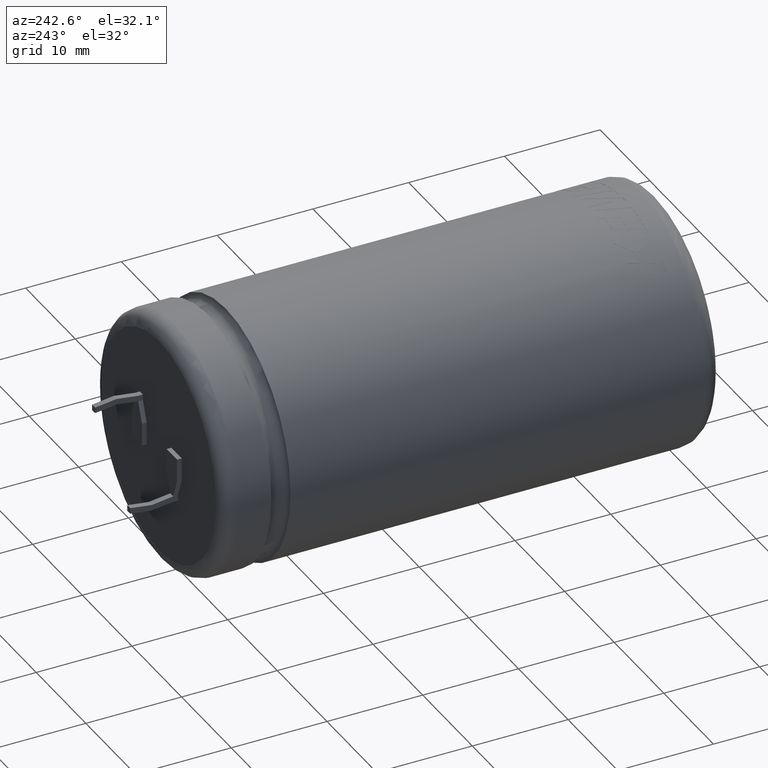
[diagram: clean part render]
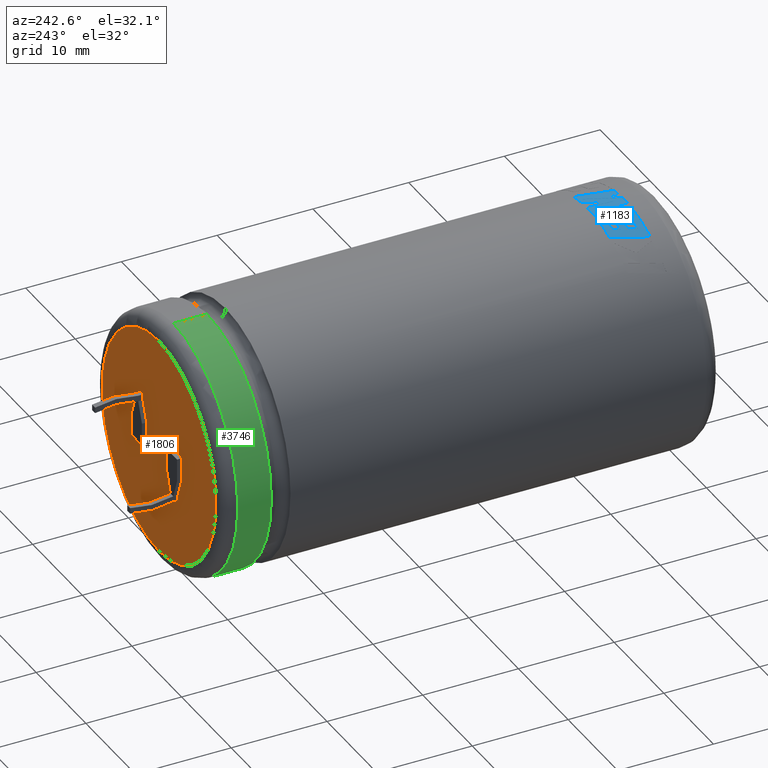
[diagram: same view with three faces highlighted in distinct colors, each labeled with its STEP entity id]
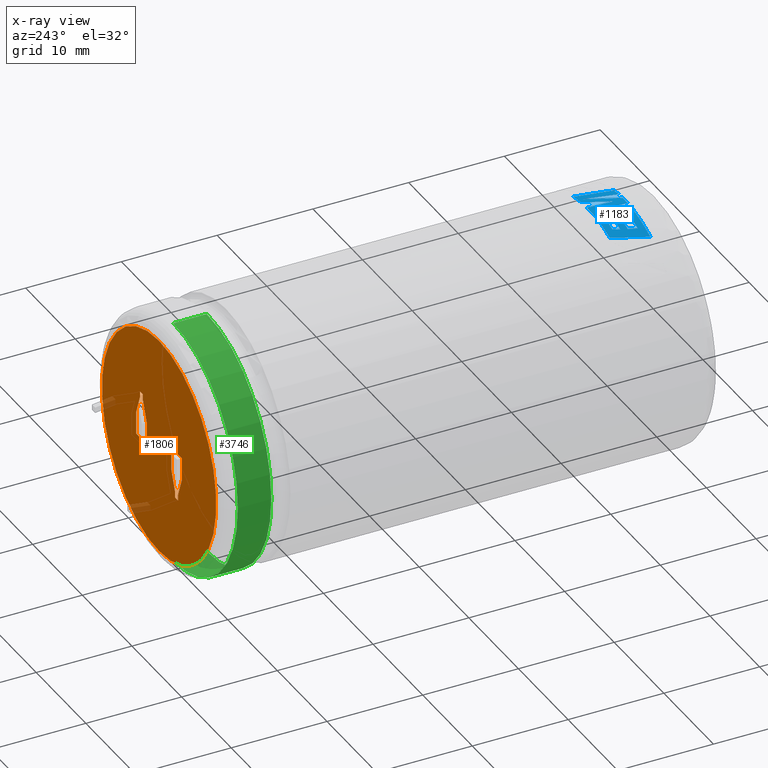
[diagram: x-ray of the same camera — body ghosted, the three highlighted faces saturated]
A machine part, auxiliary view with three faces highlighted in distinct colors.
The next image is the same camera in x-ray (body ghosted, the three faces saturated) — at least one of them is partly hidden behind the body in this view.
Their STEP definitions:

[orange] entity #1806 — the highlighted planar face has unit normal (0, 1, 0).
#51 = DIRECTION ( 'NONE',  ( 0.0000000000000000000, 1.000000000000000000, 0.0000000000000000000 ) ) ;
#64 = LINE ( 'NONE', #3012, #1003 ) ;
#130 = EDGE_LOOP ( 'NONE', ( #3664, #881 ) ) ;
#143 = CARTESIAN_POINT ( 'NONE',  ( -2.485533905932738800, 51.98999999999999500, 1.200000000000004000 ) ) ;
#177 = EDGE_CURVE ( 'NONE', #2941, #4159, #3143, .T. ) ;
#181 = ORIENTED_EDGE ( 'NONE', *, *, #3956, .F. ) ;
#236 = CARTESIAN_POINT ( 'NONE',  ( -2.485533905932738400, 51.98999999999999500, 4.171734828359475000E-015 ) ) ;
#290 = FACE_BOUND ( 'NONE', #2475, .T. ) ;
#345 = CARTESIAN_POINT ( 'NONE',  ( -4.585533905932739400, 51.98999999999999500, -1.199999999999995300 ) ) ;
#371 = CARTESIAN_POINT ( 'NONE',  ( 2.485533905932738800, 51.98999999999999500, -1.200000000000004000 ) ) ;
#446 = VECTOR ( 'NONE', #3753, 1000.000000000000000 ) ;
#447 = CARTESIAN_POINT ( 'NONE',  ( 3.235533905932737500, 51.98999999999999500, 3.235533905932737500 ) ) ;
#502 = ORIENTED_EDGE ( 'NONE', *, *, #886, .F. ) ;
#508 = DIRECTION ( 'NONE',  ( 1.000000000000000000, -0.0000000000000000000, 0.0000000000000000000 ) ) ;
#511 = FACE_OUTER_BOUND ( 'NONE', #130, .T. ) ;
#523 = EDGE_CURVE ( 'NONE', #4637, #2574, #3837, .T. ) ;
#525 = CARTESIAN_POINT ( 'NONE',  ( -3.835533905932737100, 51.98999999999999500, -3.235533905932737500 ) ) ;
#536 = VERTEX_POINT ( 'NONE', #3032 ) ;
#675 = VERTEX_POINT ( 'NONE', #525 ) ;
#708 = VECTOR ( 'NONE', #3262, 1000.000000000000000 ) ;
#724 = ORIENTED_EDGE ( 'NONE', *, *, #3546, .F. ) ;
#775 = VECTOR ( 'NONE', #2172, 1000.000000000000000 ) ;
#794 = DIRECTION ( 'NONE',  ( 0.0000000000000000000, 0.0000000000000000000, 1.000000000000000000 ) ) ;
#841 = CIRCLE ( 'NONE', #2663, 11.50240000000000200 ) ;
#863 = EDGE_CURVE ( 'NONE', #675, #3611, #64, .T. ) ;
#881 = ORIENTED_EDGE ( 'NONE', *, *, #3170, .T. ) ;
#886 = EDGE_CURVE ( 'NONE', #2574, #2941, #2630, .T. ) ;
#900 = VECTOR ( 'NONE', #1640, 1000.000000000000000 ) ;
#952 = ORIENTED_EDGE ( 'NONE', *, *, #1060, .F. ) ;
#1003 = VECTOR ( 'NONE', #1920, 1000.000000000000000 ) ;
#1014 = DIRECTION ( 'NONE',  ( 0.0000000000000000000, -0.0000000000000000000, 1.000000000000000000 ) ) ;
#1023 = CARTESIAN_POINT ( 'NONE',  ( 2.485533905932738800, 51.98999999999999500, -1.200000000000004000 ) ) ;
#1033 = ORIENTED_EDGE ( 'NONE', *, *, #2247, .F. ) ;
#1060 = EDGE_CURVE ( 'NONE', #3026, #2651, #3242, .T. ) ;
#1092 = ORIENTED_EDGE ( 'NONE', *, *, #1956, .F. ) ;
#1117 = CARTESIAN_POINT ( 'NONE',  ( -3.235533905932737500, 51.98999999999999500, -3.235533905932737500 ) ) ;
#1175 = CARTESIAN_POINT ( 'NONE',  ( -3.835533905932737600, 51.98999999999999500, -3.835533905932737600 ) ) ;
#1217 = CARTESIAN_POINT ( 'NONE',  ( 0.0000000000000000000, 51.98999999999999500, 0.0000000000000000000 ) ) ;
#1337 = LINE ( 'NONE', #1175, #446 ) ;
#1372 = DIRECTION ( 'NONE',  ( -1.000000000000000000, 0.0000000000000000000, -3.923779290899926400E-015 ) ) ;
#1381 = DIRECTION ( 'NONE',  ( 1.000000000000000000, -0.0000000000000000000, 3.923779290899926400E-015 ) ) ;
#1391 = ORIENTED_EDGE ( 'NONE', *, *, #863, .F. ) ;
#1401 = CARTESIAN_POINT ( 'NONE',  ( -2.485533905932738800, 51.98999999999999500, 1.200000000000004000 ) ) ;
#1413 = EDGE_CURVE ( 'NONE', #3611, #3426, #2894, .T. ) ;
#1433 = VERTEX_POINT ( 'NONE', #3098 ) ;
#1590 = VECTOR ( 'NONE', #1381, 1000.000000000000000 ) ;
#1598 = DIRECTION ( 'NONE',  ( 0.0000000000000000000, -0.0000000000000000000, 1.000000000000000000 ) ) ;
#1640 = DIRECTION ( 'NONE',  ( -1.000000000000000000, -0.0000000000000000000, -0.0000000000000000000 ) ) ;
#1684 = CARTESIAN_POINT ( 'NONE',  ( 0.0000000000000000000, 51.98999999999999500, 0.0000000000000000000 ) ) ;
#1703 = CARTESIAN_POINT ( 'NONE',  ( 3.235533905932737500, 51.98999999999999500, 3.835533905932737600 ) ) ;
#1709 = VECTOR ( 'NONE', #2584, 1000.000000000000000 ) ;
#1713 = VERTEX_POINT ( 'NONE', #1117 ) ;
#1751 = CARTESIAN_POINT ( 'NONE',  ( -3.235533905932737500, 51.98999999999999500, -3.835533905932737600 ) ) ;
#1796 = CARTESIAN_POINT ( 'NONE',  ( 3.835533905932737600, 51.98999999999999500, 3.835533905932737600 ) ) ;
#1806 = ADVANCED_FACE ( 'NONE', ( #290, #511, #3865 ), #3764, .T. ) ;
#1809 = CARTESIAN_POINT ( 'NONE',  ( -4.585533905932739400, 51.98999999999999500, 1.200000000000004400 ) ) ;
#1831 = VERTEX_POINT ( 'NONE', #2325 ) ;
#1893 = LINE ( 'NONE', #1401, #1590 ) ;
#1920 = DIRECTION ( 'NONE',  ( -0.3457323320025593700, -0.0000000000000000000, 0.9383331788912039300 ) ) ;
#1925 = VECTOR ( 'NONE', #4570, 1000.000000000000000 ) ;
#1949 = ORIENTED_EDGE ( 'NONE', *, *, #4790, .F. ) ;
#1953 = CARTESIAN_POINT ( 'NONE',  ( 3.235533905932737500, 51.98999999999999500, 3.835533905932737600 ) ) ;
#1956 = EDGE_CURVE ( 'NONE', #2360, #3948, #2308, .T. ) ;
#1970 = CARTESIAN_POINT ( 'NONE',  ( -4.585533905932739400, 51.98999999999999500, -1.199999999999995300 ) ) ;
#1986 = VECTOR ( 'NONE', #3050, 1000.000000000000000 ) ;
#2044 = VERTEX_POINT ( 'NONE', #3913 ) ;
#2058 = EDGE_LOOP ( 'NONE', ( #1092, #4207, #1033, #4077, #2860, #502, #3561, #181 ) ) ;
#2081 = VECTOR ( 'NONE', #508, 1000.000000000000000 ) ;
#2124 = CARTESIAN_POINT ( 'NONE',  ( 4.585533905932739400, 51.98999999999999500, 1.199999999999995300 ) ) ;
#2164 = DIRECTION ( 'NONE',  ( -0.3457323320025580400, -0.0000000000000000000, -0.9383331788912043800 ) ) ;
#2172 = DIRECTION ( 'NONE',  ( -7.228014483236692600E-016, 0.0000000000000000000, -1.000000000000000000 ) ) ;
#2231 = VERTEX_POINT ( 'NONE', #3686 ) ;
#2247 = EDGE_CURVE ( 'NONE', #4707, #2044, #3189, .T. ) ;
#2308 = LINE ( 'NONE', #2374, #3918 ) ;
#2325 = CARTESIAN_POINT ( 'NONE',  ( 1.408637734251251500E-015, 51.98999999999999500, -11.50240000000000200 ) ) ;
#2360 = VERTEX_POINT ( 'NONE', #4557 ) ;
#2362 = EDGE_CURVE ( 'NONE', #536, #1831, #2606, .T. ) ;
#2374 = CARTESIAN_POINT ( 'NONE',  ( 4.585533905932739400, 51.98999999999999500, 1.199999999999995300 ) ) ;
#2475 = EDGE_LOOP ( 'NONE', ( #2878, #1391, #2579, #4141, #3906, #1949, #952, #724 ) ) ;
#2574 = VERTEX_POINT ( 'NONE', #4055 ) ;
#2579 = ORIENTED_EDGE ( 'NONE', *, *, #2639, .F. ) ;
#2584 = DIRECTION ( 'NONE',  ( -0.0000000000000000000, -0.0000000000000000000, -1.000000000000000000 ) ) ;
#2592 = LINE ( 'NONE', #1751, #1709 ) ;
#2606 = CIRCLE ( 'NONE', #3947, 11.50240000000000200 ) ;
#2630 = LINE ( 'NONE', #447, #2676 ) ;
#2639 = EDGE_CURVE ( 'NONE', #2231, #675, #1337, .T. ) ;
#2651 = VERTEX_POINT ( 'NONE', #4502 ) ;
#2663 = AXIS2_PLACEMENT_3D ( 'NONE', #1217, #51, #794 ) ;
#2676 = VECTOR ( 'NONE', #3361, 1000.000000000000100 ) ;
#2860 = ORIENTED_EDGE ( 'NONE', *, *, #177, .F. ) ;
#2878 = ORIENTED_EDGE ( 'NONE', *, *, #1413, .F. ) ;
#2894 = LINE ( 'NONE', #1970, #1925 ) ;
#2941 = VERTEX_POINT ( 'NONE', #4379 ) ;
#2964 = VECTOR ( 'NONE', #3884, 1000.000000000000000 ) ;
#2978 = EDGE_CURVE ( 'NONE', #1433, #2231, #3275, .T. ) ;
#3006 = VECTOR ( 'NONE', #1372, 1000.000000000000000 ) ;
#3012 = CARTESIAN_POINT ( 'NONE',  ( -4.585533905932739400, 51.98999999999999500, -1.199999999999995300 ) ) ;
#3026 = VERTEX_POINT ( 'NONE', #143 ) ;
#3032 = CARTESIAN_POINT ( 'NONE',  ( 0.0000000000000000000, 51.98999999999999500, 11.50240000000000200 ) ) ;
#3050 = DIRECTION ( 'NONE',  ( 0.0000000000000000000, 0.0000000000000000000, 1.000000000000000000 ) ) ;
#3089 = DIRECTION ( 'NONE',  ( 0.0000000000000000000, 0.0000000000000000000, -1.000000000000000000 ) ) ;
#3096 = CARTESIAN_POINT ( 'NONE',  ( 2.485533905932738400, 51.98999999999999500, -4.171734828359475000E-015 ) ) ;
#3098 = CARTESIAN_POINT ( 'NONE',  ( -3.235533905932737500, 51.98999999999999500, -3.835533905932737600 ) ) ;
#3104 = LINE ( 'NONE', #3824, #2081 ) ;
#3143 = LINE ( 'NONE', #1703, #4733 ) ;
#3170 = EDGE_CURVE ( 'NONE', #1831, #536, #841, .T. ) ;
#3173 = DIRECTION ( 'NONE',  ( 0.0000000000000000000, 1.000000000000000000, 0.0000000000000000000 ) ) ;
#3189 = LINE ( 'NONE', #1796, #775 ) ;
#3194 = DIRECTION ( 'NONE',  ( 0.0000000000000000000, 0.0000000000000000000, 1.000000000000000000 ) ) ;
#3242 = LINE ( 'NONE', #236, #2964 ) ;
#3262 = DIRECTION ( 'NONE',  ( 0.3457323320025593700, 0.0000000000000000000, -0.9383331788912039300 ) ) ;
#3275 = LINE ( 'NONE', #3536, #900 ) ;
#3360 = LINE ( 'NONE', #2124, #708 ) ;
#3361 = DIRECTION ( 'NONE',  ( 0.3457323320025580400, -0.0000000000000000000, 0.9383331788912043800 ) ) ;
#3402 = EDGE_CURVE ( 'NONE', #1713, #1433, #2592, .T. ) ;
#3424 = DIRECTION ( 'NONE',  ( 0.0000000000000000000, 1.000000000000000000, 0.0000000000000000000 ) ) ;
#3426 = VERTEX_POINT ( 'NONE', #1809 ) ;
#3501 = LINE ( 'NONE', #4349, #4385 ) ;
#3536 = CARTESIAN_POINT ( 'NONE',  ( -3.835533905932737600, 51.98999999999999500, -3.835533905932737600 ) ) ;
#3546 = EDGE_CURVE ( 'NONE', #3426, #3026, #1893, .T. ) ;
#3561 = ORIENTED_EDGE ( 'NONE', *, *, #523, .F. ) ;
#3603 = CARTESIAN_POINT ( 'NONE',  ( 4.585533905932739400, 51.98999999999999500, -1.200000000000004400 ) ) ;
#3611 = VERTEX_POINT ( 'NONE', #345 ) ;
#3640 = CARTESIAN_POINT ( 'NONE',  ( 3.835533905932737600, 51.98999999999999500, 3.835533905932737600 ) ) ;
#3660 = EDGE_CURVE ( 'NONE', #4159, #4707, #3104, .T. ) ;
#3664 = ORIENTED_EDGE ( 'NONE', *, *, #2362, .T. ) ;
#3686 = CARTESIAN_POINT ( 'NONE',  ( -3.835533905932737600, 51.98999999999999500, -3.835533905932737600 ) ) ;
#3753 = DIRECTION ( 'NONE',  ( 7.228014483236692600E-016, 0.0000000000000000000, 1.000000000000000000 ) ) ;
#3764 = PLANE ( 'NONE',  #4472 ) ;
#3824 = CARTESIAN_POINT ( 'NONE',  ( 3.835533905932737600, 51.98999999999999500, 3.835533905932737600 ) ) ;
#3837 = LINE ( 'NONE', #3096, #1986 ) ;
#3865 = FACE_BOUND ( 'NONE', #2058, .T. ) ;
#3884 = DIRECTION ( 'NONE',  ( 0.0000000000000000000, 0.0000000000000000000, -1.000000000000000000 ) ) ;
#3906 = ORIENTED_EDGE ( 'NONE', *, *, #3402, .F. ) ;
#3913 = CARTESIAN_POINT ( 'NONE',  ( 3.835533905932737100, 51.98999999999999500, 3.235533905932737500 ) ) ;
#3918 = VECTOR ( 'NONE', #3089, 1000.000000000000000 ) ;
#3932 = EDGE_CURVE ( 'NONE', #2044, #2360, #3360, .T. ) ;
#3947 = AXIS2_PLACEMENT_3D ( 'NONE', #1684, #3173, #3194 ) ;
#3948 = VERTEX_POINT ( 'NONE', #3603 ) ;
#3956 = EDGE_CURVE ( 'NONE', #3948, #4637, #4225, .T. ) ;
#4055 = CARTESIAN_POINT ( 'NONE',  ( 2.485533905932738400, 51.98999999999999500, 1.199999999999995700 ) ) ;
#4077 = ORIENTED_EDGE ( 'NONE', *, *, #3660, .F. ) ;
#4134 = CARTESIAN_POINT ( 'NONE',  ( 0.0000000000000000000, 51.98999999999999500, 0.0000000000000000000 ) ) ;
#4141 = ORIENTED_EDGE ( 'NONE', *, *, #2978, .F. ) ;
#4159 = VERTEX_POINT ( 'NONE', #1953 ) ;
#4207 = ORIENTED_EDGE ( 'NONE', *, *, #3932, .F. ) ;
#4225 = LINE ( 'NONE', #1023, #3006 ) ;
#4349 = CARTESIAN_POINT ( 'NONE',  ( -3.235533905932737500, 51.98999999999999500, -3.235533905932737500 ) ) ;
#4379 = CARTESIAN_POINT ( 'NONE',  ( 3.235533905932737500, 51.98999999999999500, 3.235533905932737500 ) ) ;
#4385 = VECTOR ( 'NONE', #2164, 1000.000000000000100 ) ;
#4472 = AXIS2_PLACEMENT_3D ( 'NONE', #4134, #3424, #1598 ) ;
#4502 = CARTESIAN_POINT ( 'NONE',  ( -2.485533905932738400, 51.98999999999999500, -1.199999999999995700 ) ) ;
#4557 = CARTESIAN_POINT ( 'NONE',  ( 4.585533905932739400, 51.98999999999999500, 1.199999999999995300 ) ) ;
#4570 = DIRECTION ( 'NONE',  ( 0.0000000000000000000, 0.0000000000000000000, 1.000000000000000000 ) ) ;
#4637 = VERTEX_POINT ( 'NONE', #371 ) ;
#4707 = VERTEX_POINT ( 'NONE', #3640 ) ;
#4733 = VECTOR ( 'NONE', #1014, 1000.000000000000000 ) ;
#4790 = EDGE_CURVE ( 'NONE', #2651, #1713, #3501, .T. ) ;

[blue] entity #1183 — the highlighted cylindrical surface (partial cylindrical patch) has radius 12.99 mm, axis along (-0, -1, -0).
#74 = CARTESIAN_POINT ( 'NONE',  ( -2.135937887370715300, 3.433728050141756000, 12.81319122394161300 ) ) ;
#78 = B_SPLINE_CURVE_WITH_KNOTS ( 'NONE', 3,
 ( #1722, #176, #4642, #214 ),
 .UNSPECIFIED., .F., .F.,
 ( 4, 4 ),
 ( 0.0000000000000000000, 1.000000000000000000 ),
 .UNSPECIFIED. ) ;
#80 = CARTESIAN_POINT ( 'NONE',  ( 0.5795128039761094900, 5.383779550428680100, 12.98450475425791200 ) ) ;
#114 = FACE_OUTER_BOUND ( 'NONE', #3420, .T. ) ;
#146 = EDGE_CURVE ( 'NONE', #1555, #4308, #1690, .T. ) ;
#175 = CARTESIAN_POINT ( 'NONE',  ( 0.2831708090246651800, 7.157156118639040400, 12.98691319340036000 ) ) ;
#176 = CARTESIAN_POINT ( 'NONE',  ( -1.165254132886459200, 4.538684763408240600, 12.94151402719880500 ) ) ;
#195 = VERTEX_POINT ( 'NONE', #250 ) ;
#204 = DIRECTION ( 'NONE',  ( -0.0000000000000000000, -1.000000000000000000, -0.0000000000000000000 ) ) ;
#208 = EDGE_CURVE ( 'NONE', #2416, #3845, #1633, .T. ) ;
#212 = CARTESIAN_POINT ( 'NONE',  ( 2.022580137805317400, 6.764561464228359400, 12.83157315320905700 ) ) ;
#214 = CARTESIAN_POINT ( 'NONE',  ( -0.5322197638376484600, 6.748598189941244400, 12.97909249997782600 ) ) ;
#250 = CARTESIAN_POINT ( 'NONE',  ( -2.356430917271539600, 5.067529549057203700, 12.77447976757280100 ) ) ;
#310 = ORIENTED_EDGE ( 'NONE', *, *, #2048, .T. ) ;
#339 = CARTESIAN_POINT ( 'NONE',  ( 1.455339382769006400, 7.157156118639054700, 12.90821781970546000 ) ) ;
#370 = ORIENTED_EDGE ( 'NONE', *, *, #3112, .F. ) ;
#374 = ORIENTED_EDGE ( 'NONE', *, *, #1255, .F. ) ;
#387 = DIRECTION ( 'NONE',  ( 0.0000000000000000000, 0.0000000000000000000, -1.000000000000000000 ) ) ;
#401 = AXIS2_PLACEMENT_3D ( 'NONE', #2868, #1017, #3596 ) ;
#402 = EDGE_CURVE ( 'NONE', #903, #2253, #3767, .T. ) ;
#428 = CIRCLE ( 'NONE', #1553, 12.99000000000000200 ) ;
#448 = ORIENTED_EDGE ( 'NONE', *, *, #2294, .T. ) ;
#479 = AXIS2_PLACEMENT_3D ( 'NONE', #4337, #4720, #658 ) ;
#487 = CIRCLE ( 'NONE', #2001, 12.99000000000000200 ) ;
#495 = B_SPLINE_CURVE_WITH_KNOTS ( 'NONE', 3,
 ( #3172, #4589, #977, #4626 ),
 .UNSPECIFIED., .F., .F.,
 ( 4, 4 ),
 ( 0.0000000000000000000, 1.000000000000000000 ),
 .UNSPECIFIED. ) ;
#620 = EDGE_CURVE ( 'NONE', #1890, #712, #4556, .T. ) ;
#638 = CARTESIAN_POINT ( 'NONE',  ( -3.523915398105693900, 6.448420704369947700, 12.50288447787124100 ) ) ;
#656 = EDGE_CURVE ( 'NONE', #1660, #2696, #4648, .T. ) ;
#658 = DIRECTION ( 'NONE',  ( 0.0000000000000000000, 0.0000000000000000000, -1.000000000000000000 ) ) ;
#692 = CIRCLE ( 'NONE', #2466, 12.99000000000000200 ) ;
#700 = CARTESIAN_POINT ( 'NONE',  ( 3.061150456456239500, 7.157156118639054700, 12.62416167050065100 ) ) ;
#704 = CARTESIAN_POINT ( 'NONE',  ( -5.329498217617547200, 3.433728050141748900, 11.84637280978491700 ) ) ;
#712 = VERTEX_POINT ( 'NONE', #1825 ) ;
#763 = CARTESIAN_POINT ( 'NONE',  ( 0.0000000000000000000, 7.157156118639040400, 0.0000000000000000000 ) ) ;
#791 = AXIS2_PLACEMENT_3D ( 'NONE', #1918, #1163, #4124 ) ;
#820 = VERTEX_POINT ( 'NONE', #1149 ) ;
#859 = CARTESIAN_POINT ( 'NONE',  ( -1.867019543851272400, 6.448420704369962000, 12.85512886060958200 ) ) ;
#887 = ORIENTED_EDGE ( 'NONE', *, *, #3345, .F. ) ;
#893 = DIRECTION ( 'NONE',  ( 0.0000000000000000000, 0.0000000000000000000, -1.000000000000000000 ) ) ;
#903 = VERTEX_POINT ( 'NONE', #4103 ) ;
#943 = CARTESIAN_POINT ( 'NONE',  ( 0.0000000000000000000, 3.433728050141762600, 0.0000000000000000000 ) ) ;
#974 = ORIENTED_EDGE ( 'NONE', *, *, #402, .T. ) ;
#977 = CARTESIAN_POINT ( 'NONE',  ( -3.588520747156592100, 6.217568360362651700, 12.48467557697934000 ) ) ;
#1013 = CARTESIAN_POINT ( 'NONE',  ( 0.1401082759758855700, 4.497091266323513600, 12.98924438414348600 ) ) ;
#1017 = DIRECTION ( 'NONE',  ( -0.0000000000000000000, -1.000000000000000000, -0.0000000000000000000 ) ) ;
#1041 = CARTESIAN_POINT ( 'NONE',  ( -2.292031598112120900, 5.296974256820807800, 12.78635911995971400 ) ) ;
#1128 = DIRECTION ( 'NONE',  ( -0.0000000000000000000, -1.000000000000000000, -0.0000000000000000000 ) ) ;
#1149 = CARTESIAN_POINT ( 'NONE',  ( -1.299088047677969800, 7.157156118639054700, 12.92487795858747300 ) ) ;
#1157 = ORIENTED_EDGE ( 'NONE', *, *, #3690, .T. ) ;
#1163 = DIRECTION ( 'NONE',  ( -0.0000000000000000000, -1.000000000000000000, -0.0000000000000000000 ) ) ;
#1183 = ADVANCED_FACE ( 'NONE', ( #114 ), #1237, .T. ) ;
#1204 = ORIENTED_EDGE ( 'NONE', *, *, #4440, .T. ) ;
#1205 = CARTESIAN_POINT ( 'NONE',  ( -4.155361345113417900, 4.142112498812883500, 12.30743970497264800 ) ) ;
#1233 = B_SPLINE_CURVE_WITH_KNOTS ( 'NONE', 3,
 ( #1708, #4745, #3179, #1390 ),
 .UNSPECIFIED., .F., .F.,
 ( 4, 4 ),
 ( 0.0000000000000000000, 1.000000000000000000 ),
 .UNSPECIFIED. ) ;
#1237 = CYLINDRICAL_SURFACE ( 'NONE', #4447, 12.99000000000000200 ) ;
#1244 = CARTESIAN_POINT ( 'NONE',  ( -4.336140548170699400, 7.157156118639054700, 12.24491670639330800 ) ) ;
#1255 = EDGE_CURVE ( 'NONE', #1499, #4493, #1816, .T. ) ;
#1275 = ORIENTED_EDGE ( 'NONE', *, *, #3027, .F. ) ;
#1297 = CARTESIAN_POINT ( 'NONE',  ( -1.872544053302452400, 5.147127038754925700, 12.85756591702123300 ) ) ;
#1339 = CARTESIAN_POINT ( 'NONE',  ( 0.2354880597530745200, 6.270467834533860700, 12.98795288331640800 ) ) ;
#1344 = CARTESIAN_POINT ( 'NONE',  ( 0.0000000000000000000, 7.157156118639040400, 0.0000000000000000000 ) ) ;
#1347 = CARTESIAN_POINT ( 'NONE',  ( -2.157192416195001300, 4.142112498812869200, 12.80963000556654700 ) ) ;
#1349 = CARTESIAN_POINT ( 'NONE',  ( 1.073846068171658400, 3.433728050141748900, 12.94553801979169600 ) ) ;
#1370 = CARTESIAN_POINT ( 'NONE',  ( -4.672546937423938100, 5.916013429139943500, 12.12578928232981600 ) ) ;
#1374 = CARTESIAN_POINT ( 'NONE',  ( 0.0000000000000000000, 3.433728050141762600, 0.0000000000000000000 ) ) ;
#1390 = CARTESIAN_POINT ( 'NONE',  ( 2.022580137805317400, 6.764561464228359400, 12.83157315320905700 ) ) ;
#1410 = CARTESIAN_POINT ( 'NONE',  ( -2.162970839376601600, 5.755863672348045400, 12.80865555583436300 ) ) ;
#1459 = CARTESIAN_POINT ( 'NONE',  ( -0.5322197638376484600, 6.748598189941244400, 12.97909249997782600 ) ) ;
#1493 = DIRECTION ( 'NONE',  ( -0.0000000000000000000, -1.000000000000000000, -0.0000000000000000000 ) ) ;
#1497 = CIRCLE ( 'NONE', #2969, 12.99000000000000200 ) ;
#1499 = VERTEX_POINT ( 'NONE', #859 ) ;
#1536 = CARTESIAN_POINT ( 'NONE',  ( -1.480210519090970000, 3.433728050141762600, 12.90538944856653600 ) ) ;
#1553 = AXIS2_PLACEMENT_3D ( 'NONE', #943, #3850, #893 ) ;
#1555 = VERTEX_POINT ( 'NONE', #1459 ) ;
#1633 = B_SPLINE_CURVE_WITH_KNOTS ( 'NONE', 3,
 ( #4683, #4701, #1723, #1349 ),
 .UNSPECIFIED., .F., .F.,
 ( 4, 4 ),
 ( 0.0000000000000000000, 1.000000000000000000 ),
 .UNSPECIFIED. ) ;
#1660 = VERTEX_POINT ( 'NONE', #2530 ) ;
#1690 = B_SPLINE_CURVE_WITH_KNOTS ( 'NONE', 3,
 ( #4278, #3213, #3196, #2065 ),
 .UNSPECIFIED., .F., .F.,
 ( 4, 4 ),
 ( 0.0000000000000000000, 1.000000000000000000 ),
 .UNSPECIFIED. ) ;
#1708 = CARTESIAN_POINT ( 'NONE',  ( 0.2738149454096793800, 3.433728050141762600, 12.98711382007836200 ) ) ;
#1722 = CARTESIAN_POINT ( 'NONE',  ( -1.480210519090970000, 3.433728050141762600, 12.90538944856653600 ) ) ;
#1723 = CARTESIAN_POINT ( 'NONE',  ( 1.391345615072535200, 4.544005854837281300, 12.91920109663218200 ) ) ;
#1729 = ORIENTED_EDGE ( 'NONE', *, *, #3314, .T. ) ;
#1735 = CARTESIAN_POINT ( 'NONE',  ( -1.667751151051722900, 7.157156118639040400, 12.88249611287213600 ) ) ;
#1741 = DIRECTION ( 'NONE',  ( 0.0000000000000000000, 0.0000000000000000000, -1.000000000000000000 ) ) ;
#1765 = CARTESIAN_POINT ( 'NONE',  ( -2.227542447156456000, 5.526418964584427100, 12.79775148365671300 ) ) ;
#1767 = CARTESIAN_POINT ( 'NONE',  ( -2.157192416195001300, 4.142112498812869200, 12.80963000556654700 ) ) ;
#1794 = DIRECTION ( 'NONE',  ( -0.0000000000000000000, -1.000000000000000000, -0.0000000000000000000 ) ) ;
#1807 = DIRECTION ( 'NONE',  ( -0.0000000000000000000, -1.000000000000000000, -0.0000000000000000000 ) ) ;
#1816 = CIRCLE ( 'NONE', #2956, 12.99000000000000200 ) ;
#1818 = VERTEX_POINT ( 'NONE', #3043 ) ;
#1825 = CARTESIAN_POINT ( 'NONE',  ( -3.904893779264737600, 5.067529549057189400, 12.38918498419729100 ) ) ;
#1875 = VERTEX_POINT ( 'NONE', #3009 ) ;
#1890 = VERTEX_POINT ( 'NONE', #1205 ) ;
#1918 = CARTESIAN_POINT ( 'NONE',  ( 0.0000000000000000000, 7.157156118639054700, 0.0000000000000000000 ) ) ;
#1966 = VERTEX_POINT ( 'NONE', #4227 ) ;
#2001 = AXIS2_PLACEMENT_3D ( 'NONE', #4409, #1794, #4758 ) ;
#2048 = EDGE_CURVE ( 'NONE', #1875, #2416, #1233, .T. ) ;
#2063 = ORIENTED_EDGE ( 'NONE', *, *, #2354, .F. ) ;
#2065 = CARTESIAN_POINT ( 'NONE',  ( -0.7176682406090120200, 3.433728050141748900, 12.97016007212020500 ) ) ;
#2083 = AXIS2_PLACEMENT_3D ( 'NONE', #3593, #4741, #1741 ) ;
#2103 = VERTEX_POINT ( 'NONE', #1410 ) ;
#2135 = CIRCLE ( 'NONE', #791, 12.99000000000000200 ) ;
#2162 = DIRECTION ( 'NONE',  ( 0.0000000000000000000, 0.0000000000000000000, -1.000000000000000000 ) ) ;
#2178 = CARTESIAN_POINT ( 'NONE',  ( -2.162970839376601600, 5.755863672348045400, 12.80865555583436300 ) ) ;
#2204 = DIRECTION ( 'NONE',  ( 0.0000000000000000000, 0.0000000000000000000, -1.000000000000000000 ) ) ;
#2208 = B_SPLINE_CURVE_WITH_KNOTS ( 'NONE', 3,
 ( #1244, #1370, #2492, #704 ),
 .UNSPECIFIED., .F., .F.,
 ( 4, 4 ),
 ( 0.0000000000000000000, 1.000000000000000000 ),
 .UNSPECIFIED. ) ;
#2235 = ORIENTED_EDGE ( 'NONE', *, *, #2910, .T. ) ;
#2253 = VERTEX_POINT ( 'NONE', #700 ) ;
#2294 = EDGE_CURVE ( 'NONE', #3726, #1966, #3515, .T. ) ;
#2354 = EDGE_CURVE ( 'NONE', #903, #3845, #692, .T. ) ;
#2357 = CARTESIAN_POINT ( 'NONE',  ( -0.7176682406090120200, 3.433728050141748900, 12.97016007212020500 ) ) ;
#2390 = VERTEX_POINT ( 'NONE', #175 ) ;
#2416 = VERTEX_POINT ( 'NONE', #212 ) ;
#2463 = ORIENTED_EDGE ( 'NONE', *, *, #3628, .F. ) ;
#2465 = CARTESIAN_POINT ( 'NONE',  ( -3.717300287844298900, 5.755863672348058700, 12.44675775332647500 ) ) ;
#2466 = AXIS2_PLACEMENT_3D ( 'NONE', #3806, #4543, #3069 ) ;
#2492 = CARTESIAN_POINT ( 'NONE',  ( -5.004041083180146300, 4.674870739640846700, 11.99279089452241300 ) ) ;
#2530 = CARTESIAN_POINT ( 'NONE',  ( -1.667751151051722900, 7.157156118639040400, 12.88249611287213600 ) ) ;
#2614 = CIRCLE ( 'NONE', #2083, 12.99000000000000200 ) ;
#2618 = EDGE_CURVE ( 'NONE', #2253, #3726, #2135, .T. ) ;
#2647 = CARTESIAN_POINT ( 'NONE',  ( 3.061150456456239500, 7.157156118639054700, 12.62416167050065100 ) ) ;
#2692 = EDGE_CURVE ( 'NONE', #820, #3377, #3099, .T. ) ;
#2696 = VERTEX_POINT ( 'NONE', #2784 ) ;
#2706 = ORIENTED_EDGE ( 'NONE', *, *, #146, .T. ) ;
#2742 = ORIENTED_EDGE ( 'NONE', *, *, #2618, .T. ) ;
#2760 = CARTESIAN_POINT ( 'NONE',  ( -1.800668700475730000, 6.684665842459645900, 12.86476535065775000 ) ) ;
#2773 = CARTESIAN_POINT ( 'NONE',  ( 0.1877995844471916400, 5.383779550428680100, 12.98872996261046000 ) ) ;
#2776 = CARTESIAN_POINT ( 'NONE',  ( -3.904893779264737600, 5.067529549057189400, 12.38918498419729100 ) ) ;
#2780 = EDGE_CURVE ( 'NONE', #3135, #1555, #78, .T. ) ;
#2784 = CARTESIAN_POINT ( 'NONE',  ( -4.336140548170699400, 7.157156118639054700, 12.24491670639330800 ) ) ;
#2857 = CIRCLE ( 'NONE', #4361, 12.99000000000000200 ) ;
#2868 = CARTESIAN_POINT ( 'NONE',  ( 0.0000000000000000000, 4.142112498812869200, 0.0000000000000000000 ) ) ;
#2910 = EDGE_CURVE ( 'NONE', #1966, #2390, #4121, .T. ) ;
#2956 = AXIS2_PLACEMENT_3D ( 'NONE', #3687, #1128, #387 ) ;
#2969 = AXIS2_PLACEMENT_3D ( 'NONE', #763, #1493, #2204 ) ;
#3009 = CARTESIAN_POINT ( 'NONE',  ( 0.2738149454096793800, 3.433728050141762600, 12.98711382007836200 ) ) ;
#3017 = CARTESIAN_POINT ( 'NONE',  ( 2.012388091396895000, 3.433728050141762600, 12.83317552944726200 ) ) ;
#3027 = EDGE_CURVE ( 'NONE', #3192, #1818, #3036, .T. ) ;
#3036 = CIRCLE ( 'NONE', #479, 12.99000000000000200 ) ;
#3043 = CARTESIAN_POINT ( 'NONE',  ( -5.329498217617547200, 3.433728050141748900, 11.84637280978491700 ) ) ;
#3069 = DIRECTION ( 'NONE',  ( 0.0000000000000000000, 0.0000000000000000000, -1.000000000000000000 ) ) ;
#3087 = EDGE_CURVE ( 'NONE', #2390, #820, #1497, .T. ) ;
#3099 = B_SPLINE_CURVE_WITH_KNOTS ( 'NONE', 3,
 ( #3384, #3482, #1297, #1347 ),
 .UNSPECIFIED., .F., .F.,
 ( 4, 4 ),
 ( 0.0000000000000000000, 1.000000000000000000 ),
 .UNSPECIFIED. ) ;
#3112 = EDGE_CURVE ( 'NONE', #195, #712, #487, .T. ) ;
#3135 = VERTEX_POINT ( 'NONE', #1536 ) ;
#3172 = CARTESIAN_POINT ( 'NONE',  ( -3.717300287844298900, 5.755863672348058700, 12.44675775332647500 ) ) ;
#3179 = CARTESIAN_POINT ( 'NONE',  ( 1.444053749834139300, 5.654283659532813600, 12.92276352928653100 ) ) ;
#3190 = B_SPLINE_CURVE_WITH_KNOTS ( 'NONE', 3,
 ( #3861, #2760, #4751, #1735 ),
 .UNSPECIFIED., .F., .F.,
 ( 4, 4 ),
 ( 0.0000000000000000000, 1.000000000000000000 ),
 .UNSPECIFIED. ) ;
#3192 = VERTEX_POINT ( 'NONE', #74 ) ;
#3196 = CARTESIAN_POINT ( 'NONE',  ( -0.6558744124606845600, 4.538684763408247700, 12.97357926414876200 ) ) ;
#3199 = ORIENTED_EDGE ( 'NONE', *, *, #620, .T. ) ;
#3213 = CARTESIAN_POINT ( 'NONE',  ( -0.5940561488171164400, 5.643641476674739400, 12.97655684147855800 ) ) ;
#3258 = DIRECTION ( 'NONE',  ( 0.0000000000000000000, 0.0000000000000000000, -1.000000000000000000 ) ) ;
#3259 = B_SPLINE_CURVE_WITH_KNOTS ( 'NONE', 3,
 ( #4365, #1041, #1765, #2178 ),
 .UNSPECIFIED., .F., .F.,
 ( 4, 4 ),
 ( 0.0000000000000000000, 1.000000000000000000 ),
 .UNSPECIFIED. ) ;
#3314 = EDGE_CURVE ( 'NONE', #1499, #1660, #3190, .T. ) ;
#3323 = CARTESIAN_POINT ( 'NONE',  ( 0.1401082759758855700, 4.497091266323513600, 12.98924438414348600 ) ) ;
#3345 = EDGE_CURVE ( 'NONE', #1875, #4308, #2857, .T. ) ;
#3377 = VERTEX_POINT ( 'NONE', #1767 ) ;
#3384 = CARTESIAN_POINT ( 'NONE',  ( -1.299088047677969800, 7.157156118639054700, 12.92487795858747300 ) ) ;
#3420 = EDGE_LOOP ( 'NONE', ( #2742, #448, #2235, #3760, #3568, #1157, #3199, #370, #3856, #1204, #4012, #374, #1729, #3909, #4258, #1275, #2463, #4355, #2706, #887, #310, #4197, #2063, #974 ) ) ;
#3477 = VERTEX_POINT ( 'NONE', #2465 ) ;
#3482 = CARTESIAN_POINT ( 'NONE',  ( -1.586297385488608900, 6.152141578696984000, 12.89601035773841500 ) ) ;
#3515 = B_SPLINE_CURVE_WITH_KNOTS ( 'NONE', 3,
 ( #339, #4393, #80, #3323 ),
 .UNSPECIFIED., .F., .F.,
 ( 4, 4 ),
 ( 0.0000000000000000000, 1.000000000000000000 ),
 .UNSPECIFIED. ) ;
#3525 = CARTESIAN_POINT ( 'NONE',  ( 1.455339382769006400, 7.157156118639054700, 12.90821781970546000 ) ) ;
#3547 = CARTESIAN_POINT ( 'NONE',  ( 1.073846068171658400, 3.433728050141748900, 12.94553801979169600 ) ) ;
#3568 = ORIENTED_EDGE ( 'NONE', *, *, #2692, .T. ) ;
#3591 = EDGE_CURVE ( 'NONE', #2696, #1818, #2208, .T. ) ;
#3593 = CARTESIAN_POINT ( 'NONE',  ( 0.0000000000000000000, 5.755863672348045400, 0.0000000000000000000 ) ) ;
#3596 = DIRECTION ( 'NONE',  ( 0.0000000000000000000, 0.0000000000000000000, -1.000000000000000000 ) ) ;
#3628 = EDGE_CURVE ( 'NONE', #3135, #3192, #428, .T. ) ;
#3637 = CARTESIAN_POINT ( 'NONE',  ( 0.0000000000000000000, 52.00000000000000000, 0.0000000000000000000 ) ) ;
#3638 = CIRCLE ( 'NONE', #401, 12.99000000000000200 ) ;
#3687 = CARTESIAN_POINT ( 'NONE',  ( 0.0000000000000000000, 6.448420704369962000, 0.0000000000000000000 ) ) ;
#3690 = EDGE_CURVE ( 'NONE', #3377, #1890, #3638, .T. ) ;
#3713 = CARTESIAN_POINT ( 'NONE',  ( 2.364646592599082300, 4.674870739640846700, 12.77793738427532200 ) ) ;
#3726 = VERTEX_POINT ( 'NONE', #3525 ) ;
#3760 = ORIENTED_EDGE ( 'NONE', *, *, #3087, .T. ) ;
#3767 = B_SPLINE_CURVE_WITH_KNOTS ( 'NONE', 3,
 ( #3017, #3713, #4479, #2647 ),
 .UNSPECIFIED., .F., .F.,
 ( 4, 4 ),
 ( 0.0000000000000000000, 1.000000000000000000 ),
 .UNSPECIFIED. ) ;
#3806 = CARTESIAN_POINT ( 'NONE',  ( 0.0000000000000000000, 3.433728050141762600, 0.0000000000000000000 ) ) ;
#3845 = VERTEX_POINT ( 'NONE', #3547 ) ;
#3850 = DIRECTION ( 'NONE',  ( -0.0000000000000000000, -1.000000000000000000, -0.0000000000000000000 ) ) ;
#3856 = ORIENTED_EDGE ( 'NONE', *, *, #3926, .T. ) ;
#3861 = CARTESIAN_POINT ( 'NONE',  ( -1.867019543851272400, 6.448420704369962000, 12.85512886060958200 ) ) ;
#3889 = CARTESIAN_POINT ( 'NONE',  ( -3.988656443501139600, 4.759057198975750000, 12.36278419133411300 ) ) ;
#3904 = CARTESIAN_POINT ( 'NONE',  ( -4.072151356649102100, 4.450584848894309600, 12.33553389660636800 ) ) ;
#3909 = ORIENTED_EDGE ( 'NONE', *, *, #656, .T. ) ;
#3926 = EDGE_CURVE ( 'NONE', #195, #2103, #3259, .T. ) ;
#4012 = ORIENTED_EDGE ( 'NONE', *, *, #4213, .T. ) ;
#4103 = CARTESIAN_POINT ( 'NONE',  ( 2.012388091396895000, 3.433728050141762600, 12.83317552944726200 ) ) ;
#4121 = B_SPLINE_CURVE_WITH_KNOTS ( 'NONE', 3,
 ( #1013, #2773, #1339, #4649 ),
 .UNSPECIFIED., .F., .F.,
 ( 4, 4 ),
 ( 0.0000000000000000000, 1.000000000000000000 ),
 .UNSPECIFIED. ) ;
#4124 = DIRECTION ( 'NONE',  ( 0.0000000000000000000, 0.0000000000000000000, -1.000000000000000000 ) ) ;
#4197 = ORIENTED_EDGE ( 'NONE', *, *, #208, .T. ) ;
#4213 = EDGE_CURVE ( 'NONE', #3477, #4493, #495, .T. ) ;
#4218 = CARTESIAN_POINT ( 'NONE',  ( -4.155361345113417900, 4.142112498812883500, 12.30743970497264800 ) ) ;
#4227 = CARTESIAN_POINT ( 'NONE',  ( 0.1401082759758855700, 4.497091266323513600, 12.98924438414348600 ) ) ;
#4258 = ORIENTED_EDGE ( 'NONE', *, *, #3591, .T. ) ;
#4278 = CARTESIAN_POINT ( 'NONE',  ( -0.5322197638376484600, 6.748598189941244400, 12.97909249997782600 ) ) ;
#4308 = VERTEX_POINT ( 'NONE', #2357 ) ;
#4337 = CARTESIAN_POINT ( 'NONE',  ( 0.0000000000000000000, 3.433728050141748900, 0.0000000000000000000 ) ) ;
#4355 = ORIENTED_EDGE ( 'NONE', *, *, #2780, .T. ) ;
#4361 = AXIS2_PLACEMENT_3D ( 'NONE', #1374, #1807, #2162 ) ;
#4365 = CARTESIAN_POINT ( 'NONE',  ( -2.356430917271539600, 5.067529549057203700, 12.77447976757280100 ) ) ;
#4393 = CARTESIAN_POINT ( 'NONE',  ( 1.018675848644133400, 6.270467834533860700, 12.95744952985377400 ) ) ;
#4409 = CARTESIAN_POINT ( 'NONE',  ( 0.0000000000000000000, 5.067529549057203700, 0.0000000000000000000 ) ) ;
#4440 = EDGE_CURVE ( 'NONE', #2103, #3477, #2614, .T. ) ;
#4447 = AXIS2_PLACEMENT_3D ( 'NONE', #3637, #4764, #3258 ) ;
#4479 = CARTESIAN_POINT ( 'NONE',  ( 2.714629187516953500, 5.916013429139943500, 12.70818734826617000 ) ) ;
#4493 = VERTEX_POINT ( 'NONE', #638 ) ;
#4543 = DIRECTION ( 'NONE',  ( -0.0000000000000000000, -1.000000000000000000, -0.0000000000000000000 ) ) ;
#4556 = B_SPLINE_CURVE_WITH_KNOTS ( 'NONE', 3,
 ( #4218, #3904, #3889, #2776 ),
 .UNSPECIFIED., .F., .F.,
 ( 4, 4 ),
 ( 0.0000000000000000000, 1.000000000000000000 ),
 .UNSPECIFIED. ) ;
#4589 = CARTESIAN_POINT ( 'NONE',  ( -3.652984958799326600, 5.986716016355347700, 12.46596591949390700 ) ) ;
#4626 = CARTESIAN_POINT ( 'NONE',  ( -3.523915398105693900, 6.448420704369947700, 12.50288447787124100 ) ) ;
#4642 = CARTESIAN_POINT ( 'NONE',  ( -0.8489748750490574400, 5.643641476674732300, 12.96610366193051400 ) ) ;
#4648 = CIRCLE ( 'NONE', #4801, 12.99000000000000200 ) ;
#4649 = CARTESIAN_POINT ( 'NONE',  ( 0.2831708090246651800, 7.157156118639040400, 12.98691319340036000 ) ) ;
#4657 = DIRECTION ( 'NONE',  ( 0.0000000000000000000, 0.0000000000000000000, -1.000000000000000000 ) ) ;
#4683 = CARTESIAN_POINT ( 'NONE',  ( 2.022580137805317400, 6.764561464228359400, 12.83157315320905700 ) ) ;
#4701 = CARTESIAN_POINT ( 'NONE',  ( 1.707875669289540300, 5.654283659532813600, 12.88117852892554900 ) ) ;
#4720 = DIRECTION ( 'NONE',  ( -0.0000000000000000000, -1.000000000000000000, -0.0000000000000000000 ) ) ;
#4741 = DIRECTION ( 'NONE',  ( -0.0000000000000000000, -1.000000000000000000, -0.0000000000000000000 ) ) ;
#4745 = CARTESIAN_POINT ( 'NONE',  ( 0.8593540651100160000, 4.544005854837281300, 12.97476855504741000 ) ) ;
#4751 = CARTESIAN_POINT ( 'NONE',  ( -1.734243248574798900, 6.920910980549343200, 12.87388813261673100 ) ) ;
#4758 = DIRECTION ( 'NONE',  ( 0.0000000000000000000, 0.0000000000000000000, -1.000000000000000000 ) ) ;
#4764 = DIRECTION ( 'NONE',  ( -0.0000000000000000000, -1.000000000000000000, -0.0000000000000000000 ) ) ;
#4801 = AXIS2_PLACEMENT_3D ( 'NONE', #1344, #204, #4657 ) ;

[green] entity #3746 — the highlighted cylindrical surface (partial cylindrical patch) has radius 13 mm, axis along (-0, -1, -0).
#1 = LINE ( 'NONE', #4410, #3808 ) ;
#249 = EDGE_CURVE ( 'NONE', #3440, #1266, #889, .T. ) ;
#266 = CARTESIAN_POINT ( 'NONE',  ( 0.0000000000000000000, 52.00000000000000000, -13.00000000000000200 ) ) ;
#291 = CIRCLE ( 'NONE', #4717, 13.00000000000000200 ) ;
#372 = CARTESIAN_POINT ( 'NONE',  ( 1.592040838891558900E-015, 50.50239999999999400, 13.00000000000000200 ) ) ;
#564 = CARTESIAN_POINT ( 'NONE',  ( 0.0000000000000000000, 46.99996000000000200, 0.0000000000000000000 ) ) ;
#583 = DIRECTION ( 'NONE',  ( -0.0000000000000000000, -1.000000000000000000, -0.0000000000000000000 ) ) ;
#698 = CARTESIAN_POINT ( 'NONE',  ( 0.0000000000000000000, 52.00000000000000000, 0.0000000000000000000 ) ) ;
#889 = LINE ( 'NONE', #266, #3202 ) ;
#976 = FACE_OUTER_BOUND ( 'NONE', #3883, .T. ) ;
#1109 = CIRCLE ( 'NONE', #3554, 13.00000000000000200 ) ;
#1196 = ORIENTED_EDGE ( 'NONE', *, *, #4511, .T. ) ;
#1250 = ORIENTED_EDGE ( 'NONE', *, *, #249, .T. ) ;
#1266 = VERTEX_POINT ( 'NONE', #4458 ) ;
#1346 = CARTESIAN_POINT ( 'NONE',  ( 1.592040838891558900E-015, 46.99996000000000200, 13.00000000000000200 ) ) ;
#1683 = DIRECTION ( 'NONE',  ( -0.0000000000000000000, 1.000000000000000000, -0.0000000000000000000 ) ) ;
#2143 = DIRECTION ( 'NONE',  ( 0.0000000000000000000, 0.0000000000000000000, 1.000000000000000000 ) ) ;
#2406 = ORIENTED_EDGE ( 'NONE', *, *, #4281, .T. ) ;
#2954 = DIRECTION ( 'NONE',  ( -0.0000000000000000000, -1.000000000000000000, -0.0000000000000000000 ) ) ;
#3202 = VECTOR ( 'NONE', #583, 1000.000000000000000 ) ;
#3440 = VERTEX_POINT ( 'NONE', #3942 ) ;
#3479 = AXIS2_PLACEMENT_3D ( 'NONE', #698, #3613, #3991 ) ;
#3554 = AXIS2_PLACEMENT_3D ( 'NONE', #3560, #3990, #4776 ) ;
#3560 = CARTESIAN_POINT ( 'NONE',  ( 0.0000000000000000000, 50.50239999999999400, 0.0000000000000000000 ) ) ;
#3564 = ORIENTED_EDGE ( 'NONE', *, *, #4548, .F. ) ;
#3613 = DIRECTION ( 'NONE',  ( -0.0000000000000000000, -1.000000000000000000, -0.0000000000000000000 ) ) ;
#3746 = ADVANCED_FACE ( 'NONE', ( #976 ), #3917, .T. ) ;
#3749 = VERTEX_POINT ( 'NONE', #372 ) ;
#3808 = VECTOR ( 'NONE', #2954, 1000.000000000000000 ) ;
#3883 = EDGE_LOOP ( 'NONE', ( #3564, #1196, #1250, #2406 ) ) ;
#3917 = CYLINDRICAL_SURFACE ( 'NONE', #3479, 13.00000000000000200 ) ;
#3942 = CARTESIAN_POINT ( 'NONE',  ( 0.0000000000000000000, 50.50239999999999400, -13.00000000000000200 ) ) ;
#3990 = DIRECTION ( 'NONE',  ( -0.0000000000000000000, -1.000000000000000000, -0.0000000000000000000 ) ) ;
#3991 = DIRECTION ( 'NONE',  ( 0.0000000000000000000, 0.0000000000000000000, -1.000000000000000000 ) ) ;
#4235 = VERTEX_POINT ( 'NONE', #1346 ) ;
#4281 = EDGE_CURVE ( 'NONE', #1266, #4235, #291, .T. ) ;
#4410 = CARTESIAN_POINT ( 'NONE',  ( 1.592040838891558900E-015, 52.00000000000000000, 13.00000000000000200 ) ) ;
#4458 = CARTESIAN_POINT ( 'NONE',  ( 0.0000000000000000000, 46.99996000000000200, -13.00000000000000200 ) ) ;
#4511 = EDGE_CURVE ( 'NONE', #3749, #3440, #1109, .T. ) ;
#4548 = EDGE_CURVE ( 'NONE', #3749, #4235, #1, .T. ) ;
#4717 = AXIS2_PLACEMENT_3D ( 'NONE', #564, #1683, #2143 ) ;
#4776 = DIRECTION ( 'NONE',  ( 0.0000000000000000000, 0.0000000000000000000, 1.000000000000000000 ) ) ;